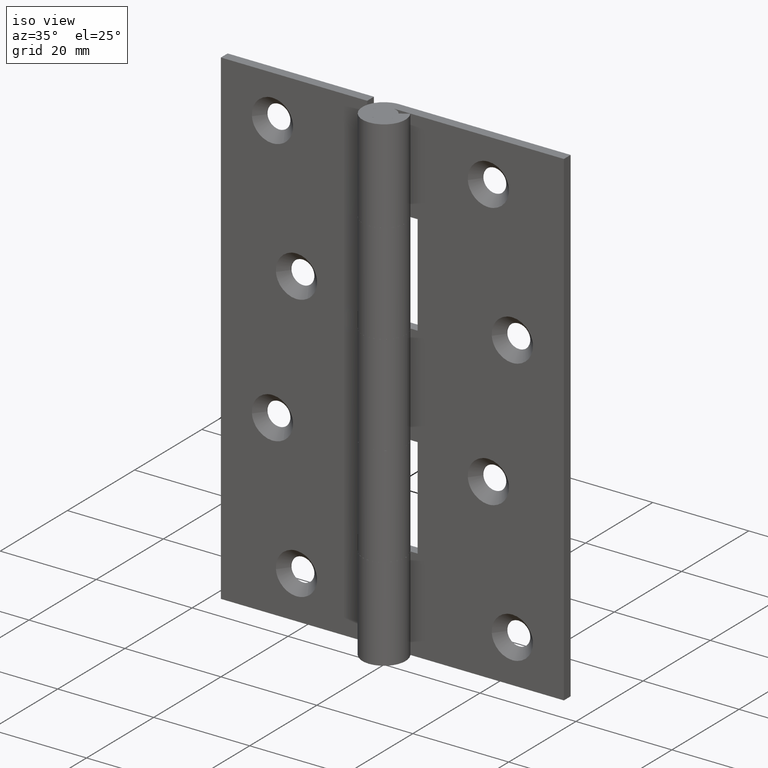
[diagram: clean part render]
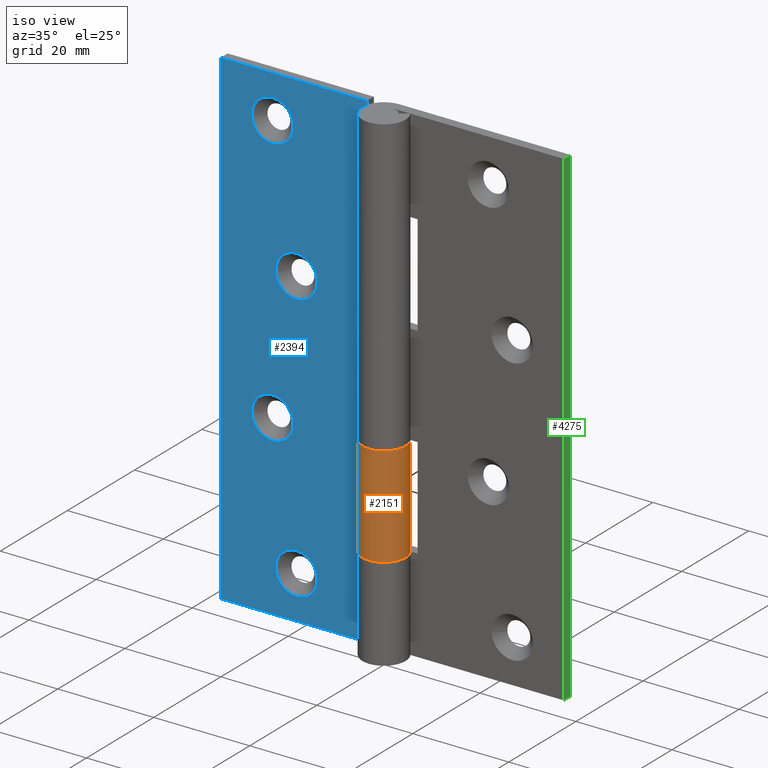
[diagram: same view with three faces highlighted in distinct colors, each labeled with its STEP entity id]
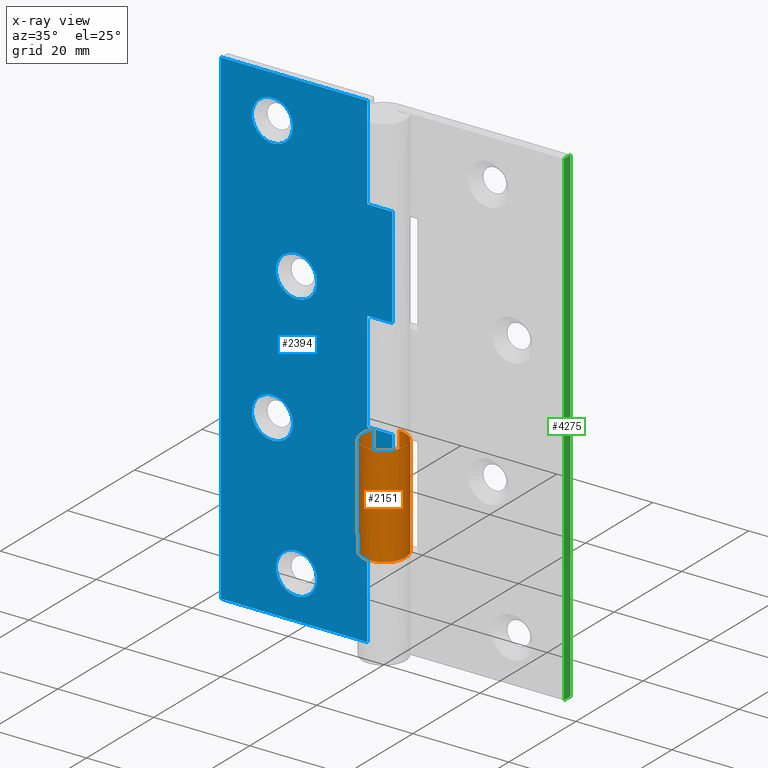
[diagram: x-ray of the same camera — body ghosted, the three highlighted faces saturated]
A machine part, iso view with three faces highlighted in distinct colors.
The next image is the same camera in x-ray (body ghosted, the three faces saturated) — at least one of them is partly hidden behind the body in this view.
Their STEP definitions:

[orange] entity #2151 — the highlighted face is a freeform B-spline surface patch.
#1841=CARTESIAN_POINT('',(-3.774586070021450,2.450000000000000,40.500007999999987));
#1842=VERTEX_POINT('',#1841);
#1848=CARTESIAN_POINT('',(-3.721266E-015,4.500000000000000,40.500007999999987));
#1849=VERTEX_POINT('',#1848);
#1850=CARTESIAN_POINT('',(-3.774586070021452,2.450000000000002,40.500007999999987));
#1851=CARTESIAN_POINT('',(-5.680028716683059,-0.485615212781100,40.500008000000001));
#1852=CARTESIAN_POINT('',(-3.303919729592087,-3.055178296010259,40.500007999999987));
#1853=CARTESIAN_POINT('',(-0.927810742501114,-5.624741379239420,40.500008000000001));
#1854=CARTESIAN_POINT('',(2.147673159491455,-3.954427897939219,40.500007999999987));
#1855=CARTESIAN_POINT('',(5.223157061484020,-2.284114416639020,40.500008000000001));
#1856=CARTESIAN_POINT('',(4.361474838900626,1.107942791680489,40.500007999999987));
#1857=CARTESIAN_POINT('',(3.499792616317230,4.500000000000000,40.500008000000001));
#1858=CARTESIAN_POINT('',(0.0,4.500000000000000,40.500007999999987));
#1866=(BOUNDED_CURVE()B_SPLINE_CURVE(2,(#1850,#1851,#1852,#1853,#1854,#1855,#1856,#1857,#1858),.UNSPECIFIED.,.F.,.U.)B_SPLINE_CURVE_WITH_KNOTS((3,2,2,2,3),(0.0,0.250000000000000,0.500000000000000,0.750000000000000,1.0),.UNSPECIFIED.)CURVE()GEOMETRIC_REPRESENTATION_ITEM()RATIONAL_B_SPLINE_CURVE((1.0,0.789369846542902,1.0,0.789369846542902,1.0,0.789369846542902,1.0,0.789369846542902,1.0))REPRESENTATION_ITEM(''));
#1867=EDGE_CURVE('',#1842,#1849,#1866,.T.);
#1995=CARTESIAN_POINT('',(-3.469447E-015,4.499999999999949,19.500008000000001));
#1996=VERTEX_POINT('',#1995);
#2002=CARTESIAN_POINT('',(-3.774586070021450,2.450000000000000,19.500007999999951));
#2003=VERTEX_POINT('',#2002);
#2004=CARTESIAN_POINT('',(-3.469447E-015,4.499999999999949,19.500008000000001));
#2005=CARTESIAN_POINT('',(3.499792616317231,4.499999999999998,19.500007999999944));
#2006=CARTESIAN_POINT('',(4.361474838900626,1.107942791680491,19.500007999999951));
#2007=CARTESIAN_POINT('',(5.223157061484022,-2.284114416639020,19.500007999999944));
#2008=CARTESIAN_POINT('',(2.147673159491454,-3.954427897939219,19.500007999999951));
#2009=CARTESIAN_POINT('',(-0.927810742501113,-5.624741379239418,19.500007999999944));
#2010=CARTESIAN_POINT('',(-3.303919729592084,-3.055178296010262,19.500007999999951));
#2011=CARTESIAN_POINT('',(-5.680028716683057,-0.485615212781105,19.500007999999944));
#2012=CARTESIAN_POINT('',(-3.774586070021453,2.449999999999999,19.500007999999951));
#2020=(BOUNDED_CURVE()B_SPLINE_CURVE(2,(#2004,#2005,#2006,#2007,#2008,#2009,#2010,#2011,#2012),.UNSPECIFIED.,.F.,.U.)B_SPLINE_CURVE_WITH_KNOTS((3,2,2,2,3),(0.0,0.250000000000000,0.500000000000000,0.750000000000000,1.0),.UNSPECIFIED.)CURVE()GEOMETRIC_REPRESENTATION_ITEM()RATIONAL_B_SPLINE_CURVE((1.0,0.789369846542903,1.0,0.789369846542903,1.0,0.789369846542903,1.0,0.789369846542903,1.0))REPRESENTATION_ITEM(''));
#2021=EDGE_CURVE('',#1996,#2003,#2020,.T.);
#2115=CARTESIAN_POINT('',(-0.117796267385439,4.498457962390006,18.975007999999939));
#2116=CARTESIAN_POINT('',(-0.117796267385439,4.498457962390006,41.038133000000002));
#2117=CARTESIAN_POINT('',(5.470496354798921,4.644792554700203,18.975007999999935));
#2118=CARTESIAN_POINT('',(5.470496354798921,4.644792554700203,41.038132999999995));
#2119=CARTESIAN_POINT('',(4.419801317117837,-0.845787394800494,18.975007999999939));
#2120=CARTESIAN_POINT('',(4.419801317117837,-0.845787394800494,41.038133000000002));
#2121=CARTESIAN_POINT('',(3.369106279436755,-6.336367344301190,18.975007999999935));
#2122=CARTESIAN_POINT('',(3.369106279436755,-6.336367344301190,41.038132999999995));
#2123=CARTESIAN_POINT('',(-1.770332002599884,-4.137139664136401,18.975007999999939));
#2124=CARTESIAN_POINT('',(-1.770332002599884,-4.137139664136401,41.038133000000002));
#2125=CARTESIAN_POINT('',(-6.909770284636524,-1.937911983971612,18.975007999999935));
#2126=CARTESIAN_POINT('',(-6.909770284636524,-1.937911983971612,41.038132999999995));
#2127=CARTESIAN_POINT('',(-3.663519832603438,2.613163300699221,18.975007999999939));
#2128=CARTESIAN_POINT('',(-3.663519832603438,2.613163300699221,41.038133000000002));
#2136=(BOUNDED_SURFACE()B_SPLINE_SURFACE(1,2,((#2115,#2117,#2119,#2121,#2123,#2125,#2127),(#2116,#2118,#2120,#2122,#2124,#2126,#2128)),.UNSPECIFIED.,.F.,.F.,.U.)B_SPLINE_SURFACE_WITH_KNOTS((2,2),(3,2,2,3),(0.0,22.063125000000060),(0.0,8.617717943547358,17.235435887094720,25.853153830642079),.UNSPECIFIED.)GEOMETRIC_REPRESENTATION_ITEM()RATIONAL_B_SPLINE_SURFACE(((1.0,0.627057105746662,1.0,0.627057105746662,1.0,0.627057105746662,1.0),(1.0,0.627057105746662,1.0,0.627057105746662,1.0,0.627057105746662,1.0)))REPRESENTATION_ITEM('')SURFACE());
#2137=ORIENTED_EDGE('',*,*,#1867,.F.);
#2138=CARTESIAN_POINT('',(-3.774586070021450,2.450000000000000,19.500007999999951));
#2139=CARTESIAN_POINT('',(-3.774586070021450,2.450000000000000,40.500007999999987));
#2140=QUASI_UNIFORM_CURVE('',1,(#2138,#2139),.UNSPECIFIED.,.F.,.U.);
#2141=EDGE_CURVE('',#2003,#1842,#2140,.T.);
#2142=ORIENTED_EDGE('',*,*,#2141,.F.);
#2143=ORIENTED_EDGE('',*,*,#2021,.F.);
#2144=CARTESIAN_POINT('',(-3.469447E-015,4.499999999999949,19.500008000000001));
#2145=CARTESIAN_POINT('',(-3.721266E-015,4.500000000000000,40.500007999999987));
#2146=QUASI_UNIFORM_CURVE('',1,(#2144,#2145),.UNSPECIFIED.,.F.,.U.);
#2147=EDGE_CURVE('',#1996,#1849,#2146,.T.);
#2148=ORIENTED_EDGE('',*,*,#2147,.T.);
#2149=EDGE_LOOP('',(#2137,#2142,#2143,#2148));
#2150=FACE_OUTER_BOUND('',#2149,.T.);
#2151=ADVANCED_FACE('',(#2150),#2136,.T.);

[blue] entity #2394 — the highlighted face is a freeform B-spline surface patch.
#336=CARTESIAN_POINT('',(-22.687233581629691,2.499999999991774,89.374934779912635));
#337=VERTEX_POINT('',#336);
#343=CARTESIAN_POINT('',(-24.999991999999899,2.500000000000000,97.300007011920840));
#344=VERTEX_POINT('',#343);
#345=CARTESIAN_POINT('',(-24.999991999999899,2.500000000000000,97.300007011920840));
#346=CARTESIAN_POINT('',(-20.699991988078963,2.500000000000000,97.300007011920840));
#347=CARTESIAN_POINT('',(-20.699991988078970,2.500000000000000,93.000006999999897));
#348=CARTESIAN_POINT('',(-20.699991988078978,2.500000000000000,90.642774272810598));
#349=CARTESIAN_POINT('',(-22.687233581629688,2.499999999991774,89.374934779912635));
#357=(BOUNDED_CURVE()B_SPLINE_CURVE(2,(#345,#346,#347,#348,#349),.UNSPECIFIED.,.F.,.U.)B_SPLINE_CURVE_WITH_KNOTS((3,2,3),(0.0,0.250000000000000,0.407950112616161),.UNSPECIFIED.)CURVE()GEOMETRIC_REPRESENTATION_ITEM()RATIONAL_B_SPLINE_CURVE((1.0,0.707106781186548,1.0,0.814949932415621,0.863729296947889))REPRESENTATION_ITEM(''));
#358=EDGE_CURVE('',#344,#337,#357,.T.);
#360=CARTESIAN_POINT('',(-29.286736546958380,2.499999999944481,92.662632887004847));
#361=VERTEX_POINT('',#360);
#362=CARTESIAN_POINT('',(-29.286736546958380,2.499999999944480,92.662632887004847));
#363=CARTESIAN_POINT('',(-29.299992011920828,2.500000000000000,92.831059538970905));
#364=CARTESIAN_POINT('',(-29.299992011920828,2.500000000000000,93.000006999999897));
#365=CARTESIAN_POINT('',(-29.299992011920825,2.500000000000000,97.300007011920840));
#366=CARTESIAN_POINT('',(-24.999991999999899,2.500000000000000,97.300007011920840));
#374=(BOUNDED_CURVE()B_SPLINE_CURVE(2,(#362,#363,#364,#365,#366),.UNSPECIFIED.,.F.,.U.)B_SPLINE_CURVE_WITH_KNOTS((3,2,3),(0.736331300598723,0.750000000000000,1.0),.UNSPECIFIED.)CURVE()GEOMETRIC_REPRESENTATION_ITEM()RATIONAL_B_SPLINE_CURVE((0.969723356100769,0.983986122541466,1.0,0.707106781186548,1.0))REPRESENTATION_ITEM(''));
#375=EDGE_CURVE('',#361,#344,#374,.T.);
#479=CARTESIAN_POINT('',(-24.999991999999899,2.500000000000000,88.700006988078968));
#480=VERTEX_POINT('',#479);
#481=CARTESIAN_POINT('',(-24.999991999999899,2.500000000000000,88.700006988078968));
#482=CARTESIAN_POINT('',(-28.974871124357989,2.500000000000000,88.700006988078982));
#483=CARTESIAN_POINT('',(-29.286736546958380,2.499999999944481,92.662632887004847));
#491=(BOUNDED_CURVE()B_SPLINE_CURVE(2,(#481,#482,#483),.UNSPECIFIED.,.F.,.U.)B_SPLINE_CURVE_WITH_KNOTS((3,3),(0.500000000000000,0.736331300598724),.UNSPECIFIED.)CURVE()GEOMETRIC_REPRESENTATION_ITEM()RATIONAL_B_SPLINE_CURVE((1.0,0.723120658645080,0.969723356100771))REPRESENTATION_ITEM(''));
#492=EDGE_CURVE('',#480,#361,#491,.T.);
#494=CARTESIAN_POINT('',(-22.687233581629688,2.499999999991774,89.374934779912635));
#495=CARTESIAN_POINT('',(-23.745131358215872,2.500000000000000,88.700006988078968));
#496=CARTESIAN_POINT('',(-24.999991999999899,2.500000000000000,88.700006988078968));
#504=(BOUNDED_CURVE()B_SPLINE_CURVE(2,(#494,#495,#496),.UNSPECIFIED.,.F.,.U.)B_SPLINE_CURVE_WITH_KNOTS((3,3),(0.407950112616161,0.500000000000000),.UNSPECIFIED.)CURVE()GEOMETRIC_REPRESENTATION_ITEM()RATIONAL_B_SPLINE_CURVE((0.863729296947889,0.892156848770926,1.0))REPRESENTATION_ITEM(''));
#505=EDGE_CURVE('',#337,#480,#504,.T.);
#680=CARTESIAN_POINT('',(-17.687233581629680,2.499999999991775,61.374919779912616));
#681=VERTEX_POINT('',#680);
#687=CARTESIAN_POINT('',(-19.999991999999899,2.500000000000000,69.299992011920835));
#688=VERTEX_POINT('',#687);
#689=CARTESIAN_POINT('',(-19.999991999999899,2.500000000000000,69.299992011920835));
#690=CARTESIAN_POINT('',(-15.699991988078960,2.500000000000000,69.299992011920835));
#691=CARTESIAN_POINT('',(-15.699991988078970,2.500000000000000,64.999991999999892));
#692=CARTESIAN_POINT('',(-15.699991988078970,2.500000000000000,62.642759272810586));
#693=CARTESIAN_POINT('',(-17.687233581629684,2.499999999991776,61.374919779912631));
#701=(BOUNDED_CURVE()B_SPLINE_CURVE(2,(#689,#690,#691,#692,#693),.UNSPECIFIED.,.F.,.U.)B_SPLINE_CURVE_WITH_KNOTS((3,2,3),(0.0,0.250000000000000,0.407950112616161),.UNSPECIFIED.)CURVE()GEOMETRIC_REPRESENTATION_ITEM()RATIONAL_B_SPLINE_CURVE((1.0,0.707106781186548,1.0,0.814949932415621,0.863729296947889))REPRESENTATION_ITEM(''));
#702=EDGE_CURVE('',#688,#681,#701,.T.);
#704=CARTESIAN_POINT('',(-24.286736546958380,2.499999999944478,64.662617887004842));
#705=VERTEX_POINT('',#704);
#706=CARTESIAN_POINT('',(-24.286736546958384,2.499999999944479,64.662617887004842));
#707=CARTESIAN_POINT('',(-24.299992011920828,2.500000000000001,64.831044538970914));
#708=CARTESIAN_POINT('',(-24.299992011920828,2.500000000000000,64.999991999999892));
#709=CARTESIAN_POINT('',(-24.299992011920835,2.500000000000000,69.299992011920835));
#710=CARTESIAN_POINT('',(-19.999991999999899,2.500000000000000,69.299992011920835));
#718=(BOUNDED_CURVE()B_SPLINE_CURVE(2,(#706,#707,#708,#709,#710),.UNSPECIFIED.,.F.,.U.)B_SPLINE_CURVE_WITH_KNOTS((3,2,3),(0.736331300598724,0.750000000000000,1.0),.UNSPECIFIED.)CURVE()GEOMETRIC_REPRESENTATION_ITEM()RATIONAL_B_SPLINE_CURVE((0.969723356100771,0.983986122541467,1.0,0.707106781186548,1.0))REPRESENTATION_ITEM(''));
#719=EDGE_CURVE('',#705,#688,#718,.T.);
#823=CARTESIAN_POINT('',(-19.999991999999899,2.500000000000000,60.699991988078970));
#824=VERTEX_POINT('',#823);
#825=CARTESIAN_POINT('',(-19.999991999999899,2.500000000000000,60.699991988078970));
#826=CARTESIAN_POINT('',(-23.974871124357989,2.500000000000000,60.699991988078963));
#827=CARTESIAN_POINT('',(-24.286736546958377,2.499999999944478,64.662617887004842));
#835=(BOUNDED_CURVE()B_SPLINE_CURVE(2,(#825,#826,#827),.UNSPECIFIED.,.F.,.U.)B_SPLINE_CURVE_WITH_KNOTS((3,3),(0.500000000000000,0.736331300598724),.UNSPECIFIED.)CURVE()GEOMETRIC_REPRESENTATION_ITEM()RATIONAL_B_SPLINE_CURVE((1.0,0.723120658645080,0.969723356100771))REPRESENTATION_ITEM(''));
#836=EDGE_CURVE('',#824,#705,#835,.T.);
#838=CARTESIAN_POINT('',(-17.687233581629684,2.499999999991776,61.374919779912631));
#839=CARTESIAN_POINT('',(-18.745131358215865,2.500000000000000,60.699991988078956));
#840=CARTESIAN_POINT('',(-19.999991999999899,2.500000000000000,60.699991988078970));
#848=(BOUNDED_CURVE()B_SPLINE_CURVE(2,(#838,#839,#840),.UNSPECIFIED.,.F.,.U.)B_SPLINE_CURVE_WITH_KNOTS((3,3),(0.407950112616161,0.500000000000000),.UNSPECIFIED.)CURVE()GEOMETRIC_REPRESENTATION_ITEM()RATIONAL_B_SPLINE_CURVE((0.863729296947889,0.892156848770926,1.0))REPRESENTATION_ITEM(''));
#849=EDGE_CURVE('',#681,#824,#848,.T.);
#1024=CARTESIAN_POINT('',(-22.687233581629691,2.499999999991775,33.374919779912631));
#1025=VERTEX_POINT('',#1024);
#1031=CARTESIAN_POINT('',(-24.999991999999899,2.500000000000000,41.299992011920828));
#1032=VERTEX_POINT('',#1031);
#1033=CARTESIAN_POINT('',(-24.999991999999899,2.500000000000000,41.299992011920828));
#1034=CARTESIAN_POINT('',(-20.699991988078963,2.500000000000000,41.299992011920821));
#1035=CARTESIAN_POINT('',(-20.699991988078970,2.500000000000000,36.999991999999899));
#1036=CARTESIAN_POINT('',(-20.699991988078978,2.500000000000000,34.642759272810586));
#1037=CARTESIAN_POINT('',(-22.687233581629688,2.499999999991776,33.374919779912638));
#1045=(BOUNDED_CURVE()B_SPLINE_CURVE(2,(#1033,#1034,#1035,#1036,#1037),.UNSPECIFIED.,.F.,.U.)B_SPLINE_CURVE_WITH_KNOTS((3,2,3),(0.0,0.250000000000000,0.407950112616161),.UNSPECIFIED.)CURVE()GEOMETRIC_REPRESENTATION_ITEM()RATIONAL_B_SPLINE_CURVE((1.0,0.707106781186548,1.0,0.814949932415621,0.863729296947889))REPRESENTATION_ITEM(''));
#1046=EDGE_CURVE('',#1032,#1025,#1045,.T.);
#1048=CARTESIAN_POINT('',(-29.286736546958380,2.499999999944482,36.662617887004863));
#1049=VERTEX_POINT('',#1048);
#1050=CARTESIAN_POINT('',(-29.286736546958380,2.499999999944482,36.662617887004856));
#1051=CARTESIAN_POINT('',(-29.299992011920835,2.500000000000001,36.831044538970922));
#1052=CARTESIAN_POINT('',(-29.299992011920828,2.500000000000000,36.999991999999899));
#1053=CARTESIAN_POINT('',(-29.299992011920825,2.500000000000000,41.299992011920821));
#1054=CARTESIAN_POINT('',(-24.999991999999899,2.500000000000000,41.299992011920828));
#1062=(BOUNDED_CURVE()B_SPLINE_CURVE(2,(#1050,#1051,#1052,#1053,#1054),.UNSPECIFIED.,.F.,.U.)B_SPLINE_CURVE_WITH_KNOTS((3,2,3),(0.736331300598724,0.750000000000000,1.0),.UNSPECIFIED.)CURVE()GEOMETRIC_REPRESENTATION_ITEM()RATIONAL_B_SPLINE_CURVE((0.969723356100771,0.983986122541467,1.0,0.707106781186548,1.0))REPRESENTATION_ITEM(''));
#1063=EDGE_CURVE('',#1049,#1032,#1062,.T.);
#1167=CARTESIAN_POINT('',(-24.999991999999899,2.500000000000000,32.699991988078970));
#1168=VERTEX_POINT('',#1167);
#1169=CARTESIAN_POINT('',(-24.999991999999899,2.500000000000000,32.699991988078970));
#1170=CARTESIAN_POINT('',(-28.974871124357989,2.500000000000000,32.699991988078978));
#1171=CARTESIAN_POINT('',(-29.286736546958380,2.499999999944482,36.662617887004849));
#1179=(BOUNDED_CURVE()B_SPLINE_CURVE(2,(#1169,#1170,#1171),.UNSPECIFIED.,.F.,.U.)B_SPLINE_CURVE_WITH_KNOTS((3,3),(0.500000000000000,0.736331300598724),.UNSPECIFIED.)CURVE()GEOMETRIC_REPRESENTATION_ITEM()RATIONAL_B_SPLINE_CURVE((1.0,0.723120658645080,0.969723356100771))REPRESENTATION_ITEM(''));
#1180=EDGE_CURVE('',#1168,#1049,#1179,.T.);
#1182=CARTESIAN_POINT('',(-22.687233581629688,2.499999999991776,33.374919779912638));
#1183=CARTESIAN_POINT('',(-23.745131358215872,2.500000000000000,32.699991988078963));
#1184=CARTESIAN_POINT('',(-24.999991999999899,2.500000000000000,32.699991988078970));
#1192=(BOUNDED_CURVE()B_SPLINE_CURVE(2,(#1182,#1183,#1184),.UNSPECIFIED.,.F.,.U.)B_SPLINE_CURVE_WITH_KNOTS((3,3),(0.407950112616161,0.500000000000000),.UNSPECIFIED.)CURVE()GEOMETRIC_REPRESENTATION_ITEM()RATIONAL_B_SPLINE_CURVE((0.863729296947889,0.892156848770926,1.0))REPRESENTATION_ITEM(''));
#1193=EDGE_CURVE('',#1025,#1168,#1192,.T.);
#1368=CARTESIAN_POINT('',(-17.687233581629680,2.499999999991775,5.374919779912736));
#1369=VERTEX_POINT('',#1368);
#1375=CARTESIAN_POINT('',(-19.999991999999899,2.500000000000000,13.299992011920930));
#1376=VERTEX_POINT('',#1375);
#1377=CARTESIAN_POINT('',(-19.999991999999899,2.500000000000000,13.299992011920930));
#1378=CARTESIAN_POINT('',(-15.699991988078960,2.500000000000000,13.299992011920930));
#1379=CARTESIAN_POINT('',(-15.699991988078970,2.500000000000000,8.999992000000001));
#1380=CARTESIAN_POINT('',(-15.699991988078967,2.500000000000000,6.642759272810688));
#1381=CARTESIAN_POINT('',(-17.687233581629684,2.499999999991776,5.374919779912736));
#1389=(BOUNDED_CURVE()B_SPLINE_CURVE(2,(#1377,#1378,#1379,#1380,#1381),.UNSPECIFIED.,.F.,.U.)B_SPLINE_CURVE_WITH_KNOTS((3,2,3),(0.0,0.250000000000000,0.407950112616161),.UNSPECIFIED.)CURVE()GEOMETRIC_REPRESENTATION_ITEM()RATIONAL_B_SPLINE_CURVE((1.0,0.707106781186548,1.0,0.814949932415621,0.863729296947889))REPRESENTATION_ITEM(''));
#1390=EDGE_CURVE('',#1376,#1369,#1389,.T.);
#1392=CARTESIAN_POINT('',(-24.286736546958380,2.499999999944479,8.662617887004949));
#1393=VERTEX_POINT('',#1392);
#1394=CARTESIAN_POINT('',(-24.286736546958380,2.499999999944480,8.662617887004949));
#1395=CARTESIAN_POINT('',(-24.299992011920828,2.500000000000000,8.831044538971018));
#1396=CARTESIAN_POINT('',(-24.299992011920828,2.500000000000000,8.999992000000001));
#1397=CARTESIAN_POINT('',(-24.299992011920835,2.500000000000000,13.299992011920930));
#1398=CARTESIAN_POINT('',(-19.999991999999899,2.500000000000000,13.299992011920930));
#1406=(BOUNDED_CURVE()B_SPLINE_CURVE(2,(#1394,#1395,#1396,#1397,#1398),.UNSPECIFIED.,.F.,.U.)B_SPLINE_CURVE_WITH_KNOTS((3,2,3),(0.736331300598723,0.750000000000000,1.0),.UNSPECIFIED.)CURVE()GEOMETRIC_REPRESENTATION_ITEM()RATIONAL_B_SPLINE_CURVE((0.969723356100769,0.983986122541466,1.0,0.707106781186548,1.0))REPRESENTATION_ITEM(''));
#1407=EDGE_CURVE('',#1393,#1376,#1406,.T.);
#1511=CARTESIAN_POINT('',(-19.999991999999899,2.500000000000000,4.699991988079070));
#1512=VERTEX_POINT('',#1511);
#1513=CARTESIAN_POINT('',(-19.999991999999899,2.500000000000000,4.699991988079070));
#1514=CARTESIAN_POINT('',(-23.974871124357989,2.500000000000000,4.699991988079070));
#1515=CARTESIAN_POINT('',(-24.286736546958377,2.499999999944478,8.662617887004949));
#1523=(BOUNDED_CURVE()B_SPLINE_CURVE(2,(#1513,#1514,#1515),.UNSPECIFIED.,.F.,.U.)B_SPLINE_CURVE_WITH_KNOTS((3,3),(0.500000000000000,0.736331300598724),.UNSPECIFIED.)CURVE()GEOMETRIC_REPRESENTATION_ITEM()RATIONAL_B_SPLINE_CURVE((1.0,0.723120658645080,0.969723356100771))REPRESENTATION_ITEM(''));
#1524=EDGE_CURVE('',#1512,#1393,#1523,.T.);
#1526=CARTESIAN_POINT('',(-17.687233581629688,2.499999999991775,5.374919779912736));
#1527=CARTESIAN_POINT('',(-18.745131358215868,2.500000000000000,4.699991988079070));
#1528=CARTESIAN_POINT('',(-19.999991999999899,2.500000000000000,4.699991988079070));
#1536=(BOUNDED_CURVE()B_SPLINE_CURVE(2,(#1526,#1527,#1528),.UNSPECIFIED.,.F.,.U.)B_SPLINE_CURVE_WITH_KNOTS((3,3),(0.407950112616161,0.500000000000000),.UNSPECIFIED.)CURVE()GEOMETRIC_REPRESENTATION_ITEM()RATIONAL_B_SPLINE_CURVE((0.863729296947889,0.892156848770926,1.0))REPRESENTATION_ITEM(''));
#1537=EDGE_CURVE('',#1369,#1512,#1536,.T.);
#1678=CARTESIAN_POINT('',(-5.250000000000000,2.499999999999945,82.500022999999999));
#1679=VERTEX_POINT('',#1678);
#1692=CARTESIAN_POINT('',(-5.250000000000000,2.499999999999945,102.000007999999990));
#1693=VERTEX_POINT('',#1692);
#1699=CARTESIAN_POINT('',(-5.250000000000000,2.499999999999945,82.500022999999999));
#1700=CARTESIAN_POINT('',(-5.250000000000000,2.499999999999945,102.000007999999990));
#1701=QUASI_UNIFORM_CURVE('',1,(#1699,#1700),.UNSPECIFIED.,.F.,.U.);
#1702=EDGE_CURVE('',#1679,#1693,#1701,.T.);
#1714=CARTESIAN_POINT('',(0.0,2.500000000000000,82.500022999999999));
#1715=VERTEX_POINT('',#1714);
#1769=CARTESIAN_POINT('',(0.0,2.500000000000000,82.500022999999999));
#1770=CARTESIAN_POINT('',(-5.250000000000000,2.499999999999945,82.500022999999999));
#1771=QUASI_UNIFORM_CURVE('',1,(#1769,#1770),.UNSPECIFIED.,.F.,.U.);
#1772=EDGE_CURVE('',#1715,#1679,#1771,.T.);
#1784=CARTESIAN_POINT('',(-5.250000000000000,2.499999999999945,40.500007999999987));
#1785=VERTEX_POINT('',#1784);
#1798=CARTESIAN_POINT('',(-5.250000000000000,2.499999999999945,61.500007999999802));
#1799=VERTEX_POINT('',#1798);
#1805=CARTESIAN_POINT('',(-5.250000000000000,2.499999999999945,40.500007999999987));
#1806=CARTESIAN_POINT('',(-5.250000000000000,2.499999999999945,61.500007999999802));
#1807=QUASI_UNIFORM_CURVE('',1,(#1805,#1806),.UNSPECIFIED.,.F.,.U.);
#1808=EDGE_CURVE('',#1785,#1799,#1807,.T.);
#1820=CARTESIAN_POINT('',(0.0,2.500000000000000,40.500007999999987));
#1821=VERTEX_POINT('',#1820);
#1875=CARTESIAN_POINT('',(0.0,2.500000000000000,40.500007999999987));
#1876=CARTESIAN_POINT('',(-5.250000000000000,2.499999999999945,40.500007999999987));
#1877=QUASI_UNIFORM_CURVE('',1,(#1875,#1876),.UNSPECIFIED.,.F.,.U.);
#1878=EDGE_CURVE('',#1821,#1785,#1877,.T.);
#1924=CARTESIAN_POINT('',(0.0,2.500000000000000,61.500007999999802));
#1925=VERTEX_POINT('',#1924);
#1945=CARTESIAN_POINT('',(-5.250000000000000,2.499999999999945,61.500007999999802));
#1946=CARTESIAN_POINT('',(0.0,2.500000000000000,61.500007999999802));
#1947=QUASI_UNIFORM_CURVE('',1,(#1945,#1946),.UNSPECIFIED.,.F.,.U.);
#1948=EDGE_CURVE('',#1799,#1925,#1947,.T.);
#1960=CARTESIAN_POINT('',(-5.250000000000000,2.500000000000000,0.0));
#1961=VERTEX_POINT('',#1960);
#1974=CARTESIAN_POINT('',(-5.250000000000000,2.499999999999945,19.500008000000001));
#1975=VERTEX_POINT('',#1974);
#1981=CARTESIAN_POINT('',(-5.250000000000000,2.500000000000000,0.0));
#1982=CARTESIAN_POINT('',(-5.250000000000000,2.499999999999945,19.500008000000001));
#1983=QUASI_UNIFORM_CURVE('',1,(#1981,#1982),.UNSPECIFIED.,.F.,.U.);
#1984=EDGE_CURVE('',#1961,#1975,#1983,.T.);
#2030=CARTESIAN_POINT('',(0.0,2.500000000000000,19.500007999999951));
#2031=VERTEX_POINT('',#2030);
#2051=CARTESIAN_POINT('',(-5.250000000000000,2.499999999999945,19.500008000000001));
#2052=CARTESIAN_POINT('',(0.0,2.500000000000000,19.500007999999951));
#2053=QUASI_UNIFORM_CURVE('',1,(#2051,#2052),.UNSPECIFIED.,.F.,.U.);
#2054=EDGE_CURVE('',#1975,#2031,#2053,.T.);
#2066=CARTESIAN_POINT('',(-35.750000000000000,2.500000000000000,102.000007999999990));
#2067=VERTEX_POINT('',#2066);
#2080=CARTESIAN_POINT('',(-35.750000000000000,2.500000000000000,0.0));
#2081=VERTEX_POINT('',#2080);
#2087=CARTESIAN_POINT('',(-35.750000000000000,2.500000000000000,0.0));
#2088=CARTESIAN_POINT('',(-35.750000000000000,2.500000000000000,102.000007999999990));
#2089=QUASI_UNIFORM_CURVE('',1,(#2087,#2088),.UNSPECIFIED.,.F.,.U.);
#2090=EDGE_CURVE('',#2081,#2067,#2089,.T.);
#2106=CARTESIAN_POINT('',(-35.750000000000000,2.500000000000000,0.0));
#2107=CARTESIAN_POINT('',(-5.250000000000000,2.500000000000000,0.0));
#2108=QUASI_UNIFORM_CURVE('',1,(#2106,#2107),.UNSPECIFIED.,.F.,.U.);
#2109=EDGE_CURVE('',#2081,#1961,#2108,.T.);
#2192=CARTESIAN_POINT('',(0.0,2.500000000000000,19.500007999999951));
#2193=CARTESIAN_POINT('',(0.0,2.500000000000000,40.500007999999987));
#2194=QUASI_UNIFORM_CURVE('',1,(#2192,#2193),.UNSPECIFIED.,.F.,.U.);
#2195=EDGE_CURVE('',#2031,#1821,#2194,.T.);
#2213=CARTESIAN_POINT('',(-35.750000000000000,2.500000000000000,102.000007999999990));
#2214=CARTESIAN_POINT('',(-5.250000000000000,2.499999999999945,102.000007999999990));
#2215=QUASI_UNIFORM_CURVE('',1,(#2213,#2214),.UNSPECIFIED.,.F.,.U.);
#2216=EDGE_CURVE('',#2067,#1693,#2215,.T.);
#2342=CARTESIAN_POINT('',(0.0,2.500000000000000,61.500007999999802));
#2343=CARTESIAN_POINT('',(0.0,2.500000000000000,82.500022999999999));
#2344=QUASI_UNIFORM_CURVE('',1,(#2342,#2343),.UNSPECIFIED.,.F.,.U.);
#2345=EDGE_CURVE('',#1925,#1715,#2344,.T.);
#2351=CARTESIAN_POINT('',(-37.535712430709580,2.500000000000000,107.094908201904200));
#2352=CARTESIAN_POINT('',(-37.535712430709580,2.500000000000000,-5.094902937757600));
#2353=CARTESIAN_POINT('',(1.785713389599288,2.500000000000000,107.094908201904200));
#2354=CARTESIAN_POINT('',(1.785713389599288,2.500000000000000,-5.094902937757600));
#2355=B_SPLINE_SURFACE_WITH_KNOTS('',1,1,((#2351,#2353),(#2352,#2354)),.UNSPECIFIED.,.F.,.F.,.U.,(2,2),(2,2),(0.0,112.189811139661800),(0.0,39.321425820308868),.UNSPECIFIED.);
#2356=ORIENTED_EDGE('',*,*,#1772,.T.);
#2357=ORIENTED_EDGE('',*,*,#1702,.T.);
#2358=ORIENTED_EDGE('',*,*,#2216,.F.);
#2359=ORIENTED_EDGE('',*,*,#2090,.F.);
#2360=ORIENTED_EDGE('',*,*,#2109,.T.);
#2361=ORIENTED_EDGE('',*,*,#1984,.T.);
#2362=ORIENTED_EDGE('',*,*,#2054,.T.);
#2363=ORIENTED_EDGE('',*,*,#2195,.T.);
#2364=ORIENTED_EDGE('',*,*,#1878,.T.);
#2365=ORIENTED_EDGE('',*,*,#1808,.T.);
#2366=ORIENTED_EDGE('',*,*,#1948,.T.);
#2367=ORIENTED_EDGE('',*,*,#2345,.T.);
#2368=EDGE_LOOP('',(#2356,#2357,#2358,#2359,#2360,#2361,#2362,#2363,#2364,#2365,#2366,#2367));
#2369=FACE_OUTER_BOUND('',#2368,.T.);
#2370=ORIENTED_EDGE('',*,*,#1524,.T.);
#2371=ORIENTED_EDGE('',*,*,#1407,.T.);
#2372=ORIENTED_EDGE('',*,*,#1390,.T.);
#2373=ORIENTED_EDGE('',*,*,#1537,.T.);
#2374=EDGE_LOOP('',(#2370,#2371,#2372,#2373));
#2375=FACE_BOUND('',#2374,.T.);
#2376=ORIENTED_EDGE('',*,*,#1180,.T.);
#2377=ORIENTED_EDGE('',*,*,#1063,.T.);
#2378=ORIENTED_EDGE('',*,*,#1046,.T.);
#2379=ORIENTED_EDGE('',*,*,#1193,.T.);
#2380=EDGE_LOOP('',(#2376,#2377,#2378,#2379));
#2381=FACE_BOUND('',#2380,.T.);
#2382=ORIENTED_EDGE('',*,*,#836,.T.);
#2383=ORIENTED_EDGE('',*,*,#719,.T.);
#2384=ORIENTED_EDGE('',*,*,#702,.T.);
#2385=ORIENTED_EDGE('',*,*,#849,.T.);
#2386=EDGE_LOOP('',(#2382,#2383,#2384,#2385));
#2387=FACE_BOUND('',#2386,.T.);
#2388=ORIENTED_EDGE('',*,*,#492,.T.);
#2389=ORIENTED_EDGE('',*,*,#375,.T.);
#2390=ORIENTED_EDGE('',*,*,#358,.T.);
#2391=ORIENTED_EDGE('',*,*,#505,.T.);
#2392=EDGE_LOOP('',(#2388,#2389,#2390,#2391));
#2393=FACE_BOUND('',#2392,.T.);
#2394=ADVANCED_FACE('',(#2369,#2375,#2381,#2387,#2393),#2355,.T.);

[green] entity #4275 — the highlighted face is a freeform B-spline surface patch.
#4156=CARTESIAN_POINT('',(35.749991999999999,2.500000000000000,102.000007999999990));
#4157=VERTEX_POINT('',#4156);
#4163=CARTESIAN_POINT('',(35.749991999999999,4.500000000000000,102.000007999999990));
#4164=VERTEX_POINT('',#4163);
#4165=CARTESIAN_POINT('',(35.749991999999999,4.500000000000000,102.000007999999990));
#4166=CARTESIAN_POINT('',(35.749991999999999,2.500000000000000,102.000007999999990));
#4167=QUASI_UNIFORM_CURVE('',1,(#4165,#4166),.UNSPECIFIED.,.F.,.U.);
#4168=EDGE_CURVE('',#4164,#4157,#4167,.T.);
#4206=CARTESIAN_POINT('',(35.749991999999999,4.500000000000000,0.0));
#4207=VERTEX_POINT('',#4206);
#4213=CARTESIAN_POINT('',(35.749991999999999,2.500000000000000,0.0));
#4214=VERTEX_POINT('',#4213);
#4215=CARTESIAN_POINT('',(35.749991999999999,4.500000000000000,0.0));
#4216=CARTESIAN_POINT('',(35.749991999999999,2.500000000000000,0.0));
#4217=QUASI_UNIFORM_CURVE('',1,(#4215,#4216),.UNSPECIFIED.,.F.,.U.);
#4218=EDGE_CURVE('',#4207,#4214,#4217,.T.);
#4256=CARTESIAN_POINT('',(35.749991999999999,2.400100003876388,-5.094900201904192));
#4257=CARTESIAN_POINT('',(35.749991999999999,2.400100003876388,107.094910937757600));
#4258=CARTESIAN_POINT('',(35.749991999999999,4.599900049767792,-5.094900201904192));
#4259=CARTESIAN_POINT('',(35.749991999999999,4.599900049767792,107.094910937757600));
#4260=B_SPLINE_SURFACE_WITH_KNOTS('',1,1,((#4256,#4258),(#4257,#4259)),.UNSPECIFIED.,.F.,.F.,.U.,(2,2),(2,2),(0.0,112.189811139661800),(0.0,2.199800045891405),.UNSPECIFIED.);
#4261=ORIENTED_EDGE('',*,*,#4168,.T.);
#4262=CARTESIAN_POINT('',(35.749991999999999,2.500000000000000,0.0));
#4263=CARTESIAN_POINT('',(35.749991999999999,2.500000000000000,102.000007999999990));
#4264=QUASI_UNIFORM_CURVE('',1,(#4262,#4263),.UNSPECIFIED.,.F.,.U.);
#4265=EDGE_CURVE('',#4214,#4157,#4264,.T.);
#4266=ORIENTED_EDGE('',*,*,#4265,.F.);
#4267=ORIENTED_EDGE('',*,*,#4218,.F.);
#4268=CARTESIAN_POINT('',(35.749991999999999,4.500000000000000,0.0));
#4269=CARTESIAN_POINT('',(35.749991999999999,4.500000000000000,102.000007999999990));
#4270=QUASI_UNIFORM_CURVE('',1,(#4268,#4269),.UNSPECIFIED.,.F.,.U.);
#4271=EDGE_CURVE('',#4207,#4164,#4270,.T.);
#4272=ORIENTED_EDGE('',*,*,#4271,.T.);
#4273=EDGE_LOOP('',(#4261,#4266,#4267,#4272));
#4274=FACE_OUTER_BOUND('',#4273,.T.);
#4275=ADVANCED_FACE('',(#4274),#4260,.F.);